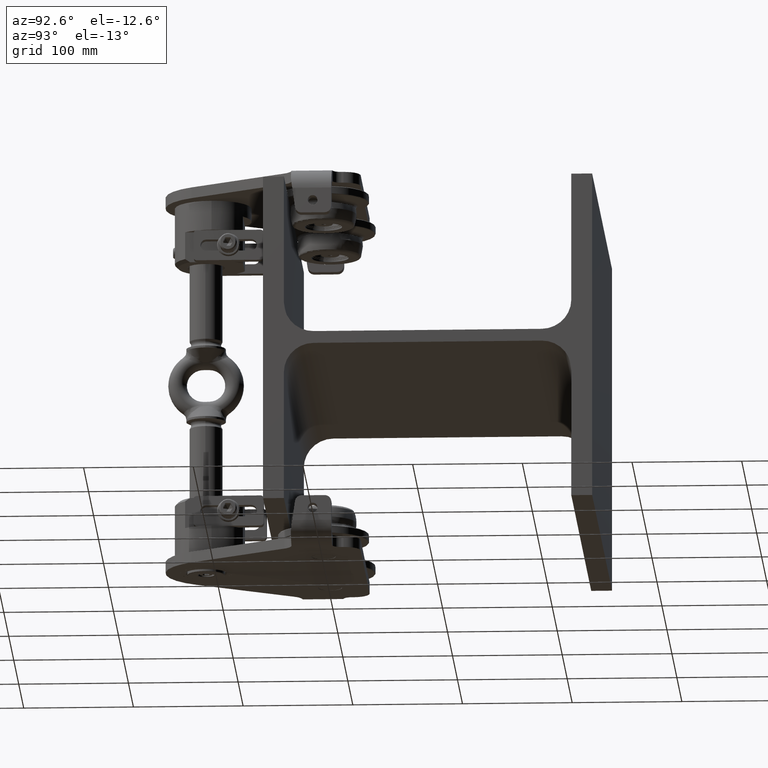
[diagram: clean part render]
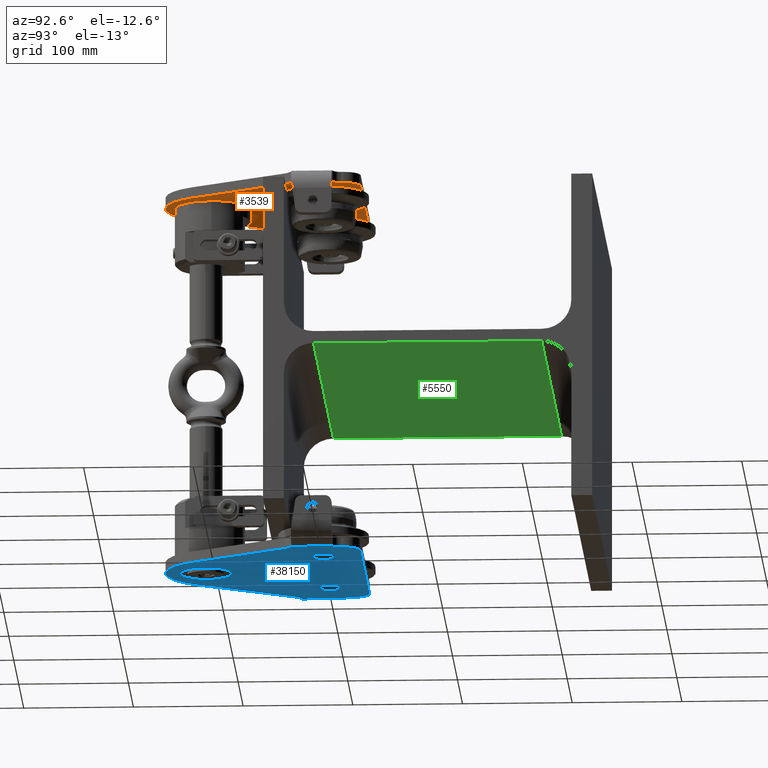
[diagram: same view with three faces highlighted in distinct colors, each labeled with its STEP entity id]
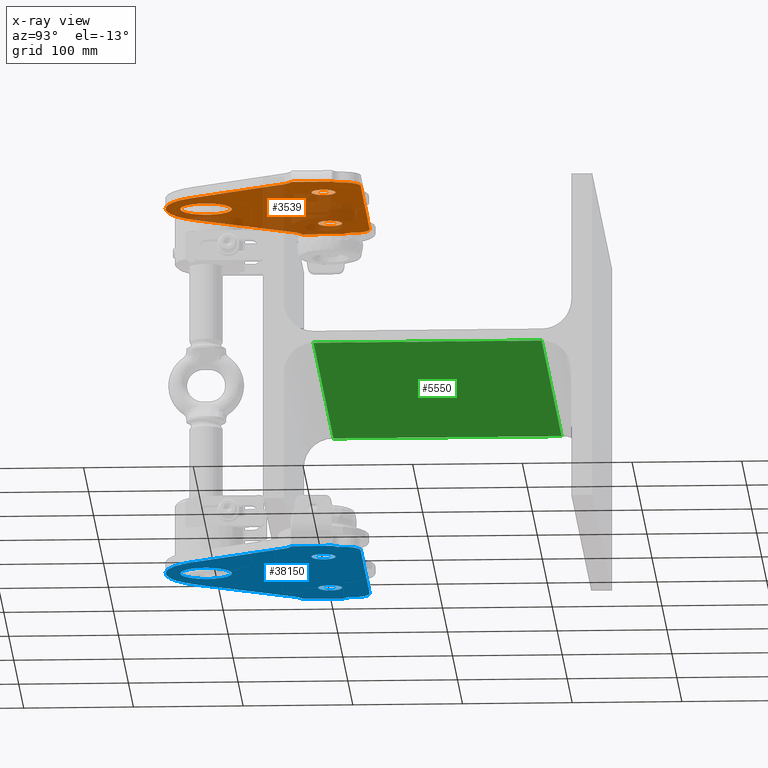
[diagram: x-ray of the same camera — body ghosted, the three highlighted faces saturated]
A machine part, auxiliary view with three faces highlighted in distinct colors.
The next image is the same camera in x-ray (body ghosted, the three faces saturated) — at least one of them is partly hidden behind the body in this view.
Their STEP definitions:

[orange] entity #3539 — the highlighted planar face has unit normal (-0, -0, -1).
#491 = CARTESIAN_POINT ( 'NONE',  ( 46.74760858534361300, -221.9769061763243200, 164.9999999999998300 ) ) ;
#654 = DIRECTION ( 'NONE',  ( -1.000000000000000000, 0.0000000000000000000, 0.0000000000000000000 ) ) ;
#659 = CARTESIAN_POINT ( 'NONE',  ( -65.00000000000004300, -100.9999999999999700, 164.9999999999998000 ) ) ;
#831 = CARTESIAN_POINT ( 'NONE',  ( -90.00000000000004300, -80.99999999999992900, 164.9999999999998300 ) ) ;
#1080 = EDGE_CURVE ( 'NONE', #38210, #17899, #20031, .T. ) ;
#1100 = CIRCLE ( 'NONE', #52102, 10.99999999999999600 ) ;
#1825 = LINE ( 'NONE', #19940, #53238 ) ;
#1920 = VERTEX_POINT ( 'NONE', #4016 ) ;
#2576 = CARTESIAN_POINT ( 'NONE',  ( -65.00000000000004300, -89.99999999999997200, 164.9999999999998000 ) ) ;
#2676 = LINE ( 'NONE', #22964, #5918 ) ;
#2912 = VECTOR ( 'NONE', #42065, 1000.000000000000000 ) ;
#3539 = ADVANCED_FACE ( 'NONE', ( #22065, #52590, #46040, #43362 ), #35369, .T. ) ;
#3640 = EDGE_CURVE ( 'NONE', #15501, #11050, #1825, .T. ) ;
#3810 = VERTEX_POINT ( 'NONE', #12500 ) ;
#4016 = CARTESIAN_POINT ( 'NONE',  ( 113.3500829062198400, -127.9999999999999400, 164.9999999999998000 ) ) ;
#4229 = EDGE_CURVE ( 'NONE', #6718, #11050, #21267, .T. ) ;
#4296 = AXIS2_PLACEMENT_3D ( 'NONE', #11129, #52187, #11304 ) ;
#4419 = CIRCLE ( 'NONE', #48801, 10.99999999999999600 ) ;
#4515 = CARTESIAN_POINT ( 'NONE',  ( 109.9999999999999700, -247.9999999999999400, 164.9999999999998300 ) ) ;
#4564 = EDGE_CURVE ( 'NONE', #16690, #29924, #26380, .T. ) ;
#5278 = VECTOR ( 'NONE', #52118, 1000.000000000000000 ) ;
#5728 = AXIS2_PLACEMENT_3D ( 'NONE', #14856, #36208, #27700 ) ;
#5910 = CARTESIAN_POINT ( 'NONE',  ( -3.899258055146804900E-014, -234.4999999999999700, 164.9999999999998300 ) ) ;
#5915 = EDGE_CURVE ( 'NONE', #33950, #52188, #30568, .T. ) ;
#5918 = VECTOR ( 'NONE', #40162, 1000.000000000000000 ) ;
#6061 = CARTESIAN_POINT ( 'NONE',  ( -105.0000000000023400, -248.0000000000000000, 164.9999999999998600 ) ) ;
#6718 = VERTEX_POINT ( 'NONE', #12927 ) ;
#6939 = CARTESIAN_POINT ( 'NONE',  ( 64.99999999999995700, -89.99999999999995700, 164.9999999999998000 ) ) ;
#7138 = ORIENTED_EDGE ( 'NONE', *, *, #25891, .T. ) ;
#7170 = DIRECTION ( 'NONE',  ( -1.000000000000000000, 0.0000000000000000000, 0.0000000000000000000 ) ) ;
#7341 = AXIS2_PLACEMENT_3D ( 'NONE', #13543, #46921, #37987 ) ;
#7467 = DIRECTION ( 'NONE',  ( 0.0000000000000000000, -1.000000000000000000, 0.0000000000000000000 ) ) ;
#7834 = ORIENTED_EDGE ( 'NONE', *, *, #1080, .F. ) ;
#7857 = ORIENTED_EDGE ( 'NONE', *, *, #3640, .F. ) ;
#7863 = AXIS2_PLACEMENT_3D ( 'NONE', #39713, #35223, #31224 ) ;
#7995 = ORIENTED_EDGE ( 'NONE', *, *, #9566, .F. ) ;
#8236 = CARTESIAN_POINT ( 'NONE',  ( -65.00000000000004300, -111.9999999999999600, 164.9999999999998000 ) ) ;
#8985 = ORIENTED_EDGE ( 'NONE', *, *, #5915, .T. ) ;
#9243 = EDGE_CURVE ( 'NONE', #9474, #32275, #4419, .T. ) ;
#9276 = EDGE_LOOP ( 'NONE', ( #7834, #36115 ) ) ;
#9474 = VERTEX_POINT ( 'NONE', #2576 ) ;
#9480 = CIRCLE ( 'NONE', #30274, 23.50000000000000000 ) ;
#9566 = EDGE_CURVE ( 'NONE', #32275, #9474, #25169, .T. ) ;
#9573 = ORIENTED_EDGE ( 'NONE', *, *, #26605, .T. ) ;
#9847 = DIRECTION ( 'NONE',  ( 0.0000000000000000000, -1.224606353822377300E-016, -1.000000000000000000 ) ) ;
#9958 = EDGE_LOOP ( 'NONE', ( #52077, #16192 ) ) ;
#10244 = ORIENTED_EDGE ( 'NONE', *, *, #35124, .T. ) ;
#10707 = CARTESIAN_POINT ( 'NONE',  ( -90.00000000000004300, -65.99999999999992900, 164.9999999999998000 ) ) ;
#11050 = VERTEX_POINT ( 'NONE', #14015 ) ;
#11129 = CARTESIAN_POINT ( 'NONE',  ( 113.3500829062198400, -142.9999999999999400, 164.9999999999998000 ) ) ;
#11280 = DIRECTION ( 'NONE',  ( 0.0000000000000000000, 1.000000000000000000, -1.224606353822377300E-016 ) ) ;
#11304 = DIRECTION ( 'NONE',  ( -1.000000000000000000, 0.0000000000000000000, 0.0000000000000000000 ) ) ;
#11531 = CARTESIAN_POINT ( 'NONE',  ( -65.00000000000004300, -100.9999999999999700, 164.9999999999998000 ) ) ;
#11542 = CIRCLE ( 'NONE', #5728, 7.999999999999992900 ) ;
#11861 = ORIENTED_EDGE ( 'NONE', *, *, #27386, .T. ) ;
#12308 = AXIS2_PLACEMENT_3D ( 'NONE', #16504, #24827, #53947 ) ;
#12500 = CARTESIAN_POINT ( 'NONE',  ( 100.6007351102170300, -135.0972074064569300, 164.9999999999998300 ) ) ;
#12816 = CARTESIAN_POINT ( 'NONE',  ( -110.0000000000000600, -90.41619848709558500, 164.9999999999998300 ) ) ;
#12927 = CARTESIAN_POINT ( 'NONE',  ( -100.6007351102171000, -135.0972074064569300, 164.9999999999998300 ) ) ;
#12947 = VECTOR ( 'NONE', #13180, 1000.000000000000100 ) ;
#12981 = LINE ( 'NONE', #27134, #33077 ) ;
#13180 = DIRECTION ( 'NONE',  ( -0.5268528395695337700, 0.8499565197335209300, -3.763871864003361200E-017 ) ) ;
#13298 = AXIS2_PLACEMENT_3D ( 'NONE', #52335, #52517, #44097 ) ;
#13543 = CARTESIAN_POINT ( 'NONE',  ( -113.3500829062199100, -142.9999999999999700, 164.9999999999998300 ) ) ;
#13615 = CARTESIAN_POINT ( 'NONE',  ( -3.611466057347176600E-014, -210.9999999999999700, 164.9999999999998300 ) ) ;
#13867 = ORIENTED_EDGE ( 'NONE', *, *, #52260, .F. ) ;
#14015 = CARTESIAN_POINT ( 'NONE',  ( -113.3500829062199200, -127.9999999999999400, 164.9999999999998000 ) ) ;
#14397 = EDGE_CURVE ( 'NONE', #33701, #33950, #24015, .T. ) ;
#14702 = DIRECTION ( 'NONE',  ( -1.000000000000000000, 1.544492516359362600E-032, 1.261215501241293700E-016 ) ) ;
#14856 = CARTESIAN_POINT ( 'NONE',  ( -113.0000000000000600, -82.99999999999992900, 164.9999999999998300 ) ) ;
#14930 = ORIENTED_EDGE ( 'NONE', *, *, #33384, .T. ) ;
#15019 = EDGE_CURVE ( 'NONE', #17899, #38210, #1100, .T. ) ;
#15447 = CARTESIAN_POINT ( 'NONE',  ( -46.74760858534368400, -221.9769061763243200, 164.9999999999998300 ) ) ;
#15501 = VERTEX_POINT ( 'NONE', #32339 ) ;
#15712 = AXIS2_PLACEMENT_3D ( 'NONE', #27732, #44052, #14702 ) ;
#16192 = ORIENTED_EDGE ( 'NONE', *, *, #40235, .T. ) ;
#16504 = CARTESIAN_POINT ( 'NONE',  ( -3.931019861682865000E-014, -192.9999999999999400, 164.9999999999998300 ) ) ;
#16690 = VERTEX_POINT ( 'NONE', #33415 ) ;
#17080 = VERTEX_POINT ( 'NONE', #15447 ) ;
#17387 = CARTESIAN_POINT ( 'NONE',  ( -3.611466057347176600E-014, -210.9999999999999700, 164.9999999999998300 ) ) ;
#17602 = EDGE_CURVE ( 'NONE', #43443, #33701, #11542, .T. ) ;
#17899 = VERTEX_POINT ( 'NONE', #6939 ) ;
#18212 = VECTOR ( 'NONE', #26991, 1000.000000000000000 ) ;
#18920 = ORIENTED_EDGE ( 'NONE', *, *, #4564, .F. ) ;
#19199 = VECTOR ( 'NONE', #51118, 1000.000000000000100 ) ;
#19913 = DIRECTION ( 'NONE',  ( 0.0000000000000000000, -1.000000000000000000, 0.0000000000000000000 ) ) ;
#19940 = CARTESIAN_POINT ( 'NONE',  ( 129.9999999999999700, -127.9999999999999400, 164.9999999999998000 ) ) ;
#20031 = CIRCLE ( 'NONE', #53851, 10.99999999999999600 ) ;
#20285 = ORIENTED_EDGE ( 'NONE', *, *, #46503, .F. ) ;
#21267 = CIRCLE ( 'NONE', #7341, 15.00000000000000000 ) ;
#21487 = ORIENTED_EDGE ( 'NONE', *, *, #14397, .T. ) ;
#21693 = CARTESIAN_POINT ( 'NONE',  ( -52.65162886094317700, -212.4521202228409900, 164.9999999999998300 ) ) ;
#22065 = FACE_OUTER_BOUND ( 'NONE', #35567, .T. ) ;
#22140 = ORIENTED_EDGE ( 'NONE', *, *, #28467, .T. ) ;
#22842 = AXIS2_PLACEMENT_3D ( 'NONE', #831, #42396, #654 ) ;
#22929 = EDGE_CURVE ( 'NONE', #28598, #38489, #9480, .T. ) ;
#22964 = CARTESIAN_POINT ( 'NONE',  ( 105.0000000000022700, -247.9999999999969600, 164.9999999999998300 ) ) ;
#23789 = VECTOR ( 'NONE', #11280, 1000.000000000000000 ) ;
#23912 = VERTEX_POINT ( 'NONE', #491 ) ;
#24015 = LINE ( 'NONE', #6061, #18212 ) ;
#24451 = CIRCLE ( 'NONE', #7863, 7.999999999999992900 ) ;
#24827 = DIRECTION ( 'NONE',  ( -1.261215501241293700E-016, -1.224606353822377300E-016, -1.000000000000000000 ) ) ;
#24877 = VERTEX_POINT ( 'NONE', #51831 ) ;
#24912 = CIRCLE ( 'NONE', #4296, 15.00000000000000000 ) ;
#25006 = CARTESIAN_POINT ( 'NONE',  ( 64.99999999999995700, -111.9999999999999400, 164.9999999999998000 ) ) ;
#25169 = CIRCLE ( 'NONE', #42824, 10.99999999999999600 ) ;
#25414 = CARTESIAN_POINT ( 'NONE',  ( -105.0000000000000300, -80.99999999999992900, 164.9999999999998300 ) ) ;
#25739 = LINE ( 'NONE', #49050, #23789 ) ;
#25891 = EDGE_CURVE ( 'NONE', #3810, #23912, #49743, .T. ) ;
#26380 = LINE ( 'NONE', #4515, #2912 ) ;
#26605 = EDGE_CURVE ( 'NONE', #24877, #29630, #2676, .T. ) ;
#26620 = CIRCLE ( 'NONE', #12308, 55.00000000000000700 ) ;
#26991 = DIRECTION ( 'NONE',  ( 1.387778780781448000E-014, 1.000000000000000000, -1.224606353822394800E-016 ) ) ;
#27045 = CARTESIAN_POINT ( 'NONE',  ( 129.9999999999999700, -127.9999999999999400, 164.9999999999998000 ) ) ;
#27134 = CARTESIAN_POINT ( 'NONE',  ( -110.0000000000000600, -65.99999999999992900, 164.9999999999998300 ) ) ;
#27386 = EDGE_CURVE ( 'NONE', #17080, #6718, #38205, .T. ) ;
#27700 = DIRECTION ( 'NONE',  ( -1.000000000000000000, 0.0000000000000000000, 0.0000000000000000000 ) ) ;
#27732 = CARTESIAN_POINT ( 'NONE',  ( -110.0000000000000600, -247.9999999999999400, 164.9999999999998600 ) ) ;
#28195 = CIRCLE ( 'NONE', #13298, 15.00000000000000000 ) ;
#28467 = EDGE_CURVE ( 'NONE', #23912, #17080, #26620, .T. ) ;
#28468 = ORIENTED_EDGE ( 'NONE', *, *, #9243, .F. ) ;
#28598 = VERTEX_POINT ( 'NONE', #32573 ) ;
#29594 = DIRECTION ( 'NONE',  ( 0.0000000000000000000, -1.224606353822377300E-016, -1.000000000000000000 ) ) ;
#29630 = VERTEX_POINT ( 'NONE', #37066 ) ;
#29924 = VERTEX_POINT ( 'NONE', #39563 ) ;
#30274 = AXIS2_PLACEMENT_3D ( 'NONE', #17387, #33306, #33680 ) ;
#30552 = DIRECTION ( 'NONE',  ( 0.0000000000000000000, -1.000000000000000000, 0.0000000000000000000 ) ) ;
#30568 = CIRCLE ( 'NONE', #22842, 15.00000000000000000 ) ;
#30612 = DIRECTION ( 'NONE',  ( 1.261215501241293700E-016, 1.224606353822377300E-016, 1.000000000000000000 ) ) ;
#31224 = DIRECTION ( 'NONE',  ( -1.000000000000000000, 0.0000000000000000000, 0.0000000000000000000 ) ) ;
#31705 = ORIENTED_EDGE ( 'NONE', *, *, #4229, .T. ) ;
#31728 = ORIENTED_EDGE ( 'NONE', *, *, #45747, .T. ) ;
#32275 = VERTEX_POINT ( 'NONE', #8236 ) ;
#32339 = CARTESIAN_POINT ( 'NONE',  ( -110.0000000000000600, -127.9999999999999400, 164.9999999999998000 ) ) ;
#32360 = DIRECTION ( 'NONE',  ( 0.0000000000000000000, -1.224606353822377300E-016, -1.000000000000000000 ) ) ;
#32573 = CARTESIAN_POINT ( 'NONE',  ( -3.611466057347176600E-014, -187.4999999999999700, 164.9999999999998300 ) ) ;
#33077 = VECTOR ( 'NONE', #48039, 1000.000000000000000 ) ;
#33306 = DIRECTION ( 'NONE',  ( 1.261215501241293700E-016, 1.224606353822377300E-016, 1.000000000000000000 ) ) ;
#33384 = EDGE_CURVE ( 'NONE', #1920, #3810, #24912, .T. ) ;
#33415 = CARTESIAN_POINT ( 'NONE',  ( 109.9999999999999700, -127.9999999999999400, 164.9999999999998000 ) ) ;
#33669 = AXIS2_PLACEMENT_3D ( 'NONE', #13615, #30612, #34612 ) ;
#33680 = DIRECTION ( 'NONE',  ( -1.000000000000000000, 0.0000000000000000000, 0.0000000000000000000 ) ) ;
#33701 = VERTEX_POINT ( 'NONE', #37407 ) ;
#33950 = VERTEX_POINT ( 'NONE', #25414 ) ;
#34612 = DIRECTION ( 'NONE',  ( -1.000000000000000000, 0.0000000000000000000, 0.0000000000000000000 ) ) ;
#35124 = EDGE_CURVE ( 'NONE', #29630, #29924, #24451, .T. ) ;
#35223 = DIRECTION ( 'NONE',  ( 1.261215501241293700E-016, 1.224606353822377300E-016, 1.000000000000000000 ) ) ;
#35369 = PLANE ( 'NONE',  #15712 ) ;
#35567 = EDGE_LOOP ( 'NONE', ( #18920, #13867, #14930, #7138, #22140, #11861, #31705, #7857, #41483, #47129, #21487, #8985, #20285, #31728, #9573, #10244 ) ) ;
#36115 = ORIENTED_EDGE ( 'NONE', *, *, #15019, .F. ) ;
#36208 = DIRECTION ( 'NONE',  ( 1.261215501241293700E-016, 1.224606353822377300E-016, 1.000000000000000000 ) ) ;
#37066 = CARTESIAN_POINT ( 'NONE',  ( 104.9999999999999700, -82.99999999999992900, 164.9999999999998000 ) ) ;
#37407 = CARTESIAN_POINT ( 'NONE',  ( -105.0000000000000700, -82.99999999999992900, 164.9999999999998300 ) ) ;
#37754 = LINE ( 'NONE', #27045, #5278 ) ;
#37987 = DIRECTION ( 'NONE',  ( -1.000000000000000000, 1.850371707708594400E-015, 0.0000000000000000000 ) ) ;
#38205 = LINE ( 'NONE', #21693, #12947 ) ;
#38210 = VERTEX_POINT ( 'NONE', #25006 ) ;
#38489 = VERTEX_POINT ( 'NONE', #5910 ) ;
#38865 = CARTESIAN_POINT ( 'NONE',  ( 89.99999999999995700, -65.99999999999992900, 164.9999999999998000 ) ) ;
#39563 = CARTESIAN_POINT ( 'NONE',  ( 109.9999999999999700, -90.41619848709557100, 164.9999999999998000 ) ) ;
#39713 = CARTESIAN_POINT ( 'NONE',  ( 112.9999999999999700, -82.99999999999992900, 164.9999999999998000 ) ) ;
#40162 = DIRECTION ( 'NONE',  ( 1.387778780781448000E-014, -1.000000000000000000, 1.224606353822359800E-016 ) ) ;
#40235 = EDGE_CURVE ( 'NONE', #38489, #28598, #46427, .T. ) ;
#41483 = ORIENTED_EDGE ( 'NONE', *, *, #44173, .T. ) ;
#42065 = DIRECTION ( 'NONE',  ( 0.0000000000000000000, 1.000000000000000000, -1.224606353822377300E-016 ) ) ;
#42396 = DIRECTION ( 'NONE',  ( -1.261215501241293700E-016, -1.224606353822377300E-016, -1.000000000000000000 ) ) ;
#42426 = VERTEX_POINT ( 'NONE', #38865 ) ;
#42824 = AXIS2_PLACEMENT_3D ( 'NONE', #11531, #32360, #7467 ) ;
#42841 = CARTESIAN_POINT ( 'NONE',  ( -8.414632342802702800, -310.9685615279347500, 164.9999999999998600 ) ) ;
#43362 = FACE_BOUND ( 'NONE', #9958, .T. ) ;
#43443 = VERTEX_POINT ( 'NONE', #12816 ) ;
#44052 = DIRECTION ( 'NONE',  ( -1.261215501241293700E-016, -1.224606353822377300E-016, -1.000000000000000000 ) ) ;
#44097 = DIRECTION ( 'NONE',  ( -1.000000000000000000, 0.0000000000000000000, 0.0000000000000000000 ) ) ;
#44173 = EDGE_CURVE ( 'NONE', #15501, #43443, #25739, .T. ) ;
#45537 = DIRECTION ( 'NONE',  ( 0.0000000000000000000, -1.000000000000000000, 0.0000000000000000000 ) ) ;
#45747 = EDGE_CURVE ( 'NONE', #42426, #24877, #28195, .T. ) ;
#46040 = FACE_BOUND ( 'NONE', #9276, .T. ) ;
#46427 = CIRCLE ( 'NONE', #33669, 23.50000000000000000 ) ;
#46503 = EDGE_CURVE ( 'NONE', #42426, #52188, #12981, .T. ) ;
#46921 = DIRECTION ( 'NONE',  ( 1.261215501241293700E-016, 1.224606353822377300E-016, 1.000000000000000000 ) ) ;
#47129 = ORIENTED_EDGE ( 'NONE', *, *, #17602, .T. ) ;
#47275 = CARTESIAN_POINT ( 'NONE',  ( 64.99999999999995700, -100.9999999999999600, 164.9999999999998000 ) ) ;
#48039 = DIRECTION ( 'NONE',  ( -1.000000000000000000, 1.544492516359362600E-032, 1.261215501241293700E-016 ) ) ;
#48801 = AXIS2_PLACEMENT_3D ( 'NONE', #659, #29594, #45537 ) ;
#49050 = CARTESIAN_POINT ( 'NONE',  ( -110.0000000000000600, -247.9999999999999400, 164.9999999999998300 ) ) ;
#49145 = DIRECTION ( 'NONE',  ( 0.0000000000000000000, -1.224606353822377300E-016, -1.000000000000000000 ) ) ;
#49342 = CARTESIAN_POINT ( 'NONE',  ( 64.99999999999995700, -100.9999999999999600, 164.9999999999998000 ) ) ;
#49743 = LINE ( 'NONE', #42841, #19199 ) ;
#51118 = DIRECTION ( 'NONE',  ( -0.5268528395695339900, -0.8499565197335207100, 1.705337122676512800E-016 ) ) ;
#51831 = CARTESIAN_POINT ( 'NONE',  ( 104.9999999999999400, -80.99999999999992900, 164.9999999999998000 ) ) ;
#52077 = ORIENTED_EDGE ( 'NONE', *, *, #22929, .T. ) ;
#52102 = AXIS2_PLACEMENT_3D ( 'NONE', #49342, #49145, #19913 ) ;
#52118 = DIRECTION ( 'NONE',  ( -1.000000000000000000, 0.0000000000000000000, 0.0000000000000000000 ) ) ;
#52187 = DIRECTION ( 'NONE',  ( 1.261215501241293700E-016, 1.224606353822377300E-016, 1.000000000000000000 ) ) ;
#52188 = VERTEX_POINT ( 'NONE', #10707 ) ;
#52260 = EDGE_CURVE ( 'NONE', #1920, #16690, #37754, .T. ) ;
#52335 = CARTESIAN_POINT ( 'NONE',  ( 89.99999999999995700, -80.99999999999992900, 164.9999999999998000 ) ) ;
#52517 = DIRECTION ( 'NONE',  ( -1.261215501241293700E-016, -1.224606353822377300E-016, -1.000000000000000000 ) ) ;
#52590 = FACE_BOUND ( 'NONE', #53532, .T. ) ;
#53238 = VECTOR ( 'NONE', #7170, 1000.000000000000000 ) ;
#53532 = EDGE_LOOP ( 'NONE', ( #7995, #28468 ) ) ;
#53851 = AXIS2_PLACEMENT_3D ( 'NONE', #47275, #9847, #30552 ) ;
#53947 = DIRECTION ( 'NONE',  ( -1.000000000000000000, 0.0000000000000000000, 0.0000000000000000000 ) ) ;

[blue] entity #38150 — the highlighted planar face has unit normal (0, 0, -1).
#501 = CARTESIAN_POINT ( 'NONE',  ( 46.74760858534363500, -221.9769061763242900, -175.0000000000000000 ) ) ;
#723 = CARTESIAN_POINT ( 'NONE',  ( -113.0000000000000300, -82.99999999999991500, -175.0000000000000000 ) ) ;
#801 = DIRECTION ( 'NONE',  ( 0.0000000000000000000, 1.000000000000000000, 0.0000000000000000000 ) ) ;
#1168 = DIRECTION ( 'NONE',  ( -1.000000000000000000, 0.0000000000000000000, 0.0000000000000000000 ) ) ;
#1268 = VERTEX_POINT ( 'NONE', #40831 ) ;
#1388 = EDGE_CURVE ( 'NONE', #1544, #52326, #39340, .T. ) ;
#1544 = VERTEX_POINT ( 'NONE', #33942 ) ;
#2561 = CARTESIAN_POINT ( 'NONE',  ( 64.99999999999998600, -100.9999999999999600, -175.0000000000000000 ) ) ;
#2651 = ORIENTED_EDGE ( 'NONE', *, *, #3575, .T. ) ;
#2710 = CARTESIAN_POINT ( 'NONE',  ( 64.99999999999998600, -89.99999999999995700, -175.0000000000000000 ) ) ;
#3103 = EDGE_LOOP ( 'NONE', ( #11007, #27205, #20675, #53498, #48000, #5937, #39917, #3842, #23102, #50873, #46288, #35262, #2651, #42520 ) ) ;
#3388 = LINE ( 'NONE', #7122, #47648 ) ;
#3500 = EDGE_CURVE ( 'NONE', #47665, #1544, #16237, .T. ) ;
#3575 = EDGE_CURVE ( 'NONE', #52326, #1268, #32368, .T. ) ;
#3639 = EDGE_CURVE ( 'NONE', #15436, #32951, #10287, .T. ) ;
#3842 = ORIENTED_EDGE ( 'NONE', *, *, #12870, .T. ) ;
#4951 = EDGE_CURVE ( 'NONE', #42991, #17513, #33372, .T. ) ;
#5026 = ORIENTED_EDGE ( 'NONE', *, *, #42411, .F. ) ;
#5628 = CARTESIAN_POINT ( 'NONE',  ( -1.885005003163367300E-014, -210.9999999999999400, -175.0000000000000000 ) ) ;
#5937 = ORIENTED_EDGE ( 'NONE', *, *, #25212, .T. ) ;
#6066 = DIRECTION ( 'NONE',  ( 3.154042683594194400E-017, 1.224606353822377300E-016, -1.000000000000000000 ) ) ;
#6856 = VECTOR ( 'NONE', #50887, 1000.000000000000100 ) ;
#7122 = CARTESIAN_POINT ( 'NONE',  ( -105.0000000000000000, -80.99999999999991500, -175.0000000000000000 ) ) ;
#7332 = VECTOR ( 'NONE', #48040, 1000.000000000000000 ) ;
#7753 = ORIENTED_EDGE ( 'NONE', *, *, #42125, .F. ) ;
#7893 = DIRECTION ( 'NONE',  ( 0.0000000000000000000, -1.000000000000000000, 0.0000000000000000000 ) ) ;
#7914 = EDGE_CURVE ( 'NONE', #15507, #42296, #48911, .T. ) ;
#8878 = DIRECTION ( 'NONE',  ( -0.0000000000000000000, -1.224606353822377300E-016, 1.000000000000000000 ) ) ;
#9303 = CARTESIAN_POINT ( 'NONE',  ( -1.885005003163367300E-014, -187.4999999999999400, -175.0000000000000000 ) ) ;
#9844 = DIRECTION ( 'NONE',  ( 0.0000000000000000000, 1.000000000000000000, 0.0000000000000000000 ) ) ;
#10287 = CIRCLE ( 'NONE', #21264, 15.00000000000000000 ) ;
#10313 = CIRCLE ( 'NONE', #47158, 15.00000000000000000 ) ;
#10487 = DIRECTION ( 'NONE',  ( -0.5268528395695338800, 0.8499565197335208200, 1.040862154538424200E-016 ) ) ;
#10807 = VERTEX_POINT ( 'NONE', #53652 ) ;
#10985 = LINE ( 'NONE', #32206, #51305 ) ;
#11007 = ORIENTED_EDGE ( 'NONE', *, *, #40544, .T. ) ;
#11819 = DIRECTION ( 'NONE',  ( 0.0000000000000000000, -1.000000000000000000, 0.0000000000000000000 ) ) ;
#11908 = AXIS2_PLACEMENT_3D ( 'NONE', #38211, #34756, #46603 ) ;
#12192 = CARTESIAN_POINT ( 'NONE',  ( -1.565451198827678500E-014, -192.9999999999999100, -175.0000000000000000 ) ) ;
#12565 = DIRECTION ( 'NONE',  ( 0.0000000000000000000, 1.000000000000000000, 0.0000000000000000000 ) ) ;
#12870 = EDGE_CURVE ( 'NONE', #42991, #28436, #20175, .T. ) ;
#13061 = DIRECTION ( 'NONE',  ( 3.154042683594194400E-017, 1.224606353822377300E-016, -1.000000000000000000 ) ) ;
#13235 = DIRECTION ( 'NONE',  ( -1.000000000000000000, 0.0000000000000000000, 0.0000000000000000000 ) ) ;
#14478 = EDGE_CURVE ( 'NONE', #21415, #32146, #10985, .T. ) ;
#15212 = CARTESIAN_POINT ( 'NONE',  ( -110.0000000000000300, -247.9999999999999100, -175.0000000000000300 ) ) ;
#15436 = VERTEX_POINT ( 'NONE', #48019 ) ;
#15507 = VERTEX_POINT ( 'NONE', #2710 ) ;
#15954 = DIRECTION ( 'NONE',  ( 3.154042683594194400E-017, 1.224606353822377300E-016, -1.000000000000000000 ) ) ;
#16042 = CIRCLE ( 'NONE', #22443, 10.99999999999999600 ) ;
#16237 = LINE ( 'NONE', #31192, #36960 ) ;
#16525 = DIRECTION ( 'NONE',  ( 0.0000000000000000000, -1.000000000000000000, 0.0000000000000000000 ) ) ;
#17167 = EDGE_CURVE ( 'NONE', #10807, #21415, #10313, .T. ) ;
#17485 = ORIENTED_EDGE ( 'NONE', *, *, #7914, .F. ) ;
#17513 = VERTEX_POINT ( 'NONE', #35686 ) ;
#17738 = EDGE_CURVE ( 'NONE', #33096, #30160, #53107, .T. ) ;
#18000 = LINE ( 'NONE', #501, #6856 ) ;
#18049 = DIRECTION ( 'NONE',  ( 0.0000000000000000000, 1.000000000000000000, 0.0000000000000000000 ) ) ;
#18111 = CIRCLE ( 'NONE', #29881, 7.999999999999992900 ) ;
#18868 = DIRECTION ( 'NONE',  ( -1.000000000000000000, 0.0000000000000000000, 0.0000000000000000000 ) ) ;
#18905 = FACE_OUTER_BOUND ( 'NONE', #3103, .T. ) ;
#19498 = AXIS2_PLACEMENT_3D ( 'NONE', #21750, #13061, #13235 ) ;
#19591 = CARTESIAN_POINT ( 'NONE',  ( -110.0000000000000300, -247.9999999999999100, -175.0000000000000300 ) ) ;
#19759 = PLANE ( 'NONE',  #26201 ) ;
#19769 = DIRECTION ( 'NONE',  ( 0.0000000000000000000, 1.224606353822377300E-016, -1.000000000000000000 ) ) ;
#20175 = CIRCLE ( 'NONE', #11908, 15.00000000000001400 ) ;
#20352 = CARTESIAN_POINT ( 'NONE',  ( 113.0000000000000000, -82.99999999999991500, -175.0000000000000000 ) ) ;
#20614 = VERTEX_POINT ( 'NONE', #24128 ) ;
#20675 = ORIENTED_EDGE ( 'NONE', *, *, #35500, .F. ) ;
#20726 = CIRCLE ( 'NONE', #33478, 55.00000000000002100 ) ;
#20836 = CARTESIAN_POINT ( 'NONE',  ( -90.00000000000001400, -65.99999999999991500, -175.0000000000000000 ) ) ;
#21264 = AXIS2_PLACEMENT_3D ( 'NONE', #40762, #19769, #7893 ) ;
#21415 = VERTEX_POINT ( 'NONE', #50955 ) ;
#21750 = CARTESIAN_POINT ( 'NONE',  ( -65.00000000000001400, -100.9999999999999400, -175.0000000000000000 ) ) ;
#22443 = AXIS2_PLACEMENT_3D ( 'NONE', #51002, #34603, #1168 ) ;
#23102 = ORIENTED_EDGE ( 'NONE', *, *, #27938, .T. ) ;
#23316 = CARTESIAN_POINT ( 'NONE',  ( 110.0000000000000000, -247.9999999999999100, -175.0000000000000000 ) ) ;
#24087 = CARTESIAN_POINT ( 'NONE',  ( 105.0000000000000100, -82.99999999999991500, -175.0000000000000000 ) ) ;
#24128 = CARTESIAN_POINT ( 'NONE',  ( -65.00000000000001400, -89.99999999999994300, -175.0000000000000000 ) ) ;
#24544 = EDGE_CURVE ( 'NONE', #48423, #47665, #20726, .T. ) ;
#24628 = EDGE_LOOP ( 'NONE', ( #40904, #27985 ) ) ;
#25212 = EDGE_CURVE ( 'NONE', #32146, #17513, #18111, .T. ) ;
#25292 = AXIS2_PLACEMENT_3D ( 'NONE', #42893, #42541, #801 ) ;
#26201 = AXIS2_PLACEMENT_3D ( 'NONE', #15212, #15954, #44210 ) ;
#27205 = ORIENTED_EDGE ( 'NONE', *, *, #3639, .T. ) ;
#27938 = EDGE_CURVE ( 'NONE', #28436, #48423, #18000, .T. ) ;
#27985 = ORIENTED_EDGE ( 'NONE', *, *, #41178, .F. ) ;
#28436 = VERTEX_POINT ( 'NONE', #49006 ) ;
#29083 = DIRECTION ( 'NONE',  ( 0.0000000000000000000, 1.000000000000000000, 0.0000000000000000000 ) ) ;
#29881 = AXIS2_PLACEMENT_3D ( 'NONE', #20352, #54009, #29083 ) ;
#29945 = FACE_BOUND ( 'NONE', #24628, .T. ) ;
#30160 = VERTEX_POINT ( 'NONE', #52398 ) ;
#30456 = AXIS2_PLACEMENT_3D ( 'NONE', #5628, #43359, #9844 ) ;
#30539 = DIRECTION ( 'NONE',  ( -0.0000000000000000000, -1.224606353822377300E-016, 1.000000000000000000 ) ) ;
#31192 = CARTESIAN_POINT ( 'NONE',  ( -100.6007351102170900, -135.0972074064569300, -175.0000000000000000 ) ) ;
#31340 = CARTESIAN_POINT ( 'NONE',  ( -105.0000000000000300, -82.99999999999991500, -175.0000000000000000 ) ) ;
#31640 = DIRECTION ( 'NONE',  ( -1.000000000000000000, 0.0000000000000000000, 0.0000000000000000000 ) ) ;
#31860 = DIRECTION ( 'NONE',  ( 1.387778780781448000E-014, 1.000000000000000000, 1.224606353822377300E-016 ) ) ;
#32146 = VERTEX_POINT ( 'NONE', #24087 ) ;
#32206 = CARTESIAN_POINT ( 'NONE',  ( 105.0000000000000000, -82.99999999999991500, -175.0000000000000000 ) ) ;
#32368 = LINE ( 'NONE', #19591, #48674 ) ;
#32818 = DIRECTION ( 'NONE',  ( 0.0000000000000000000, 1.224606353822377300E-016, -1.000000000000000000 ) ) ;
#32951 = VERTEX_POINT ( 'NONE', #20836 ) ;
#33096 = VERTEX_POINT ( 'NONE', #9303 ) ;
#33372 = LINE ( 'NONE', #23316, #7332 ) ;
#33478 = AXIS2_PLACEMENT_3D ( 'NONE', #12192, #45004, #11819 ) ;
#33942 = CARTESIAN_POINT ( 'NONE',  ( -100.6007351102170900, -135.0972074064569300, -175.0000000000000000 ) ) ;
#34501 = EDGE_LOOP ( 'NONE', ( #44565, #5026 ) ) ;
#34603 = DIRECTION ( 'NONE',  ( 3.154042683594194400E-017, 1.224606353822377300E-016, -1.000000000000000000 ) ) ;
#34756 = DIRECTION ( 'NONE',  ( -0.0000000000000000000, -1.224606353822377300E-016, 1.000000000000000000 ) ) ;
#35152 = CARTESIAN_POINT ( 'NONE',  ( -46.74760858534366300, -221.9769061763242900, -175.0000000000000000 ) ) ;
#35262 = ORIENTED_EDGE ( 'NONE', *, *, #1388, .T. ) ;
#35500 = EDGE_CURVE ( 'NONE', #10807, #32951, #41557, .T. ) ;
#35686 = CARTESIAN_POINT ( 'NONE',  ( 110.0000000000000000, -90.41619848709555600, -175.0000000000000000 ) ) ;
#35872 = CARTESIAN_POINT ( 'NONE',  ( -110.0000000000000300, -65.99999999999991500, -175.0000000000000000 ) ) ;
#36191 = CARTESIAN_POINT ( 'NONE',  ( -65.00000000000001400, -111.9999999999999300, -175.0000000000000000 ) ) ;
#36960 = VECTOR ( 'NONE', #10487, 1000.000000000000200 ) ;
#37686 = VECTOR ( 'NONE', #47925, 1000.000000000000000 ) ;
#38150 = ADVANCED_FACE ( 'NONE', ( #50113, #38995, #29945, #18905 ), #19759, .T. ) ;
#38211 = CARTESIAN_POINT ( 'NONE',  ( 113.3500829062198500, -142.9999999999999400, -175.0000000000000000 ) ) ;
#38995 = FACE_BOUND ( 'NONE', #40681, .T. ) ;
#39340 = CIRCLE ( 'NONE', #46151, 14.99999999999998600 ) ;
#39917 = ORIENTED_EDGE ( 'NONE', *, *, #4951, .F. ) ;
#40070 = CARTESIAN_POINT ( 'NONE',  ( -110.0000000000000300, -128.3788870286337000, -175.0000000000000000 ) ) ;
#40544 = EDGE_CURVE ( 'NONE', #52806, #15436, #3388, .T. ) ;
#40549 = DIRECTION ( 'NONE',  ( 1.387778780781448000E-014, -1.000000000000000000, -1.224606353822377300E-016 ) ) ;
#40681 = EDGE_LOOP ( 'NONE', ( #7753, #17485 ) ) ;
#40762 = CARTESIAN_POINT ( 'NONE',  ( -90.00000000000001400, -80.99999999999991500, -175.0000000000000000 ) ) ;
#40831 = CARTESIAN_POINT ( 'NONE',  ( -110.0000000000000300, -90.41619848709555600, -175.0000000000000000 ) ) ;
#40904 = ORIENTED_EDGE ( 'NONE', *, *, #44834, .F. ) ;
#41178 = EDGE_CURVE ( 'NONE', #20614, #53946, #48748, .T. ) ;
#41557 = LINE ( 'NONE', #35872, #37686 ) ;
#42125 = EDGE_CURVE ( 'NONE', #42296, #15507, #16042, .T. ) ;
#42296 = VERTEX_POINT ( 'NONE', #52056 ) ;
#42411 = EDGE_CURVE ( 'NONE', #30160, #33096, #53063, .T. ) ;
#42520 = ORIENTED_EDGE ( 'NONE', *, *, #48898, .T. ) ;
#42541 = DIRECTION ( 'NONE',  ( 0.0000000000000000000, 1.224606353822377300E-016, -1.000000000000000000 ) ) ;
#42893 = CARTESIAN_POINT ( 'NONE',  ( -1.885005003163367300E-014, -210.9999999999999400, -175.0000000000000000 ) ) ;
#42991 = VERTEX_POINT ( 'NONE', #48843 ) ;
#43296 = CARTESIAN_POINT ( 'NONE',  ( 46.74760858534362700, -221.9769061763242900, -175.0000000000000000 ) ) ;
#43359 = DIRECTION ( 'NONE',  ( 0.0000000000000000000, 1.224606353822377300E-016, -1.000000000000000000 ) ) ;
#44210 = DIRECTION ( 'NONE',  ( -1.000000000000000000, 3.862460710556432000E-033, -3.154042683594194400E-017 ) ) ;
#44565 = ORIENTED_EDGE ( 'NONE', *, *, #17738, .F. ) ;
#44834 = EDGE_CURVE ( 'NONE', #53946, #20614, #48298, .T. ) ;
#45004 = DIRECTION ( 'NONE',  ( 0.0000000000000000000, 1.224606353822377300E-016, -1.000000000000000000 ) ) ;
#45907 = CARTESIAN_POINT ( 'NONE',  ( 89.99999999999998600, -80.99999999999991500, -175.0000000000000000 ) ) ;
#46132 = CARTESIAN_POINT ( 'NONE',  ( -113.3500829062199000, -142.9999999999999100, -175.0000000000000000 ) ) ;
#46151 = AXIS2_PLACEMENT_3D ( 'NONE', #46132, #8878, #12565 ) ;
#46288 = ORIENTED_EDGE ( 'NONE', *, *, #3500, .T. ) ;
#46603 = DIRECTION ( 'NONE',  ( 0.0000000000000000000, 1.000000000000000000, 0.0000000000000000000 ) ) ;
#47158 = AXIS2_PLACEMENT_3D ( 'NONE', #45907, #32818, #16525 ) ;
#47360 = CARTESIAN_POINT ( 'NONE',  ( -65.00000000000001400, -100.9999999999999400, -175.0000000000000000 ) ) ;
#47648 = VECTOR ( 'NONE', #31860, 1000.000000000000000 ) ;
#47665 = VERTEX_POINT ( 'NONE', #35152 ) ;
#47925 = DIRECTION ( 'NONE',  ( -1.000000000000000000, 3.862460710556432000E-033, -3.154042683594194400E-017 ) ) ;
#48000 = ORIENTED_EDGE ( 'NONE', *, *, #14478, .T. ) ;
#48019 = CARTESIAN_POINT ( 'NONE',  ( -105.0000000000000000, -80.99999999999991500, -175.0000000000000000 ) ) ;
#48040 = DIRECTION ( 'NONE',  ( 0.0000000000000000000, 1.000000000000000000, 1.224606353822377300E-016 ) ) ;
#48298 = CIRCLE ( 'NONE', #19498, 10.99999999999999600 ) ;
#48423 = VERTEX_POINT ( 'NONE', #43296 ) ;
#48674 = VECTOR ( 'NONE', #53570, 1000.000000000000000 ) ;
#48721 = CIRCLE ( 'NONE', #50461, 7.999999999999992900 ) ;
#48748 = CIRCLE ( 'NONE', #51958, 10.99999999999999600 ) ;
#48843 = CARTESIAN_POINT ( 'NONE',  ( 110.0000000000000000, -128.3788870286337000, -175.0000000000000000 ) ) ;
#48898 = EDGE_CURVE ( 'NONE', #1268, #52806, #48721, .T. ) ;
#48911 = CIRCLE ( 'NONE', #50156, 10.99999999999999600 ) ;
#49006 = CARTESIAN_POINT ( 'NONE',  ( 100.6007351102170400, -135.0972074064569300, -175.0000000000000000 ) ) ;
#50113 = FACE_BOUND ( 'NONE', #34501, .T. ) ;
#50156 = AXIS2_PLACEMENT_3D ( 'NONE', #2561, #51858, #31640 ) ;
#50461 = AXIS2_PLACEMENT_3D ( 'NONE', #723, #30539, #18049 ) ;
#50873 = ORIENTED_EDGE ( 'NONE', *, *, #24544, .T. ) ;
#50887 = DIRECTION ( 'NONE',  ( -0.5268528395695337700, -0.8499565197335209300, -1.040862154538424500E-016 ) ) ;
#50955 = CARTESIAN_POINT ( 'NONE',  ( 104.9999999999999700, -80.99999999999991500, -175.0000000000000000 ) ) ;
#51002 = CARTESIAN_POINT ( 'NONE',  ( 64.99999999999998600, -100.9999999999999600, -175.0000000000000000 ) ) ;
#51305 = VECTOR ( 'NONE', #40549, 1000.000000000000000 ) ;
#51858 = DIRECTION ( 'NONE',  ( 3.154042683594194400E-017, 1.224606353822377300E-016, -1.000000000000000000 ) ) ;
#51958 = AXIS2_PLACEMENT_3D ( 'NONE', #47360, #6066, #18868 ) ;
#52056 = CARTESIAN_POINT ( 'NONE',  ( 64.99999999999998600, -111.9999999999999400, -175.0000000000000000 ) ) ;
#52326 = VERTEX_POINT ( 'NONE', #40070 ) ;
#52398 = CARTESIAN_POINT ( 'NONE',  ( -1.597213005363739100E-014, -234.4999999999999400, -175.0000000000000000 ) ) ;
#52806 = VERTEX_POINT ( 'NONE', #31340 ) ;
#53063 = CIRCLE ( 'NONE', #30456, 23.49999999999999300 ) ;
#53107 = CIRCLE ( 'NONE', #25292, 23.49999999999999300 ) ;
#53498 = ORIENTED_EDGE ( 'NONE', *, *, #17167, .T. ) ;
#53570 = DIRECTION ( 'NONE',  ( 0.0000000000000000000, 1.000000000000000000, 1.224606353822377300E-016 ) ) ;
#53652 = CARTESIAN_POINT ( 'NONE',  ( 89.99999999999998600, -65.99999999999991500, -175.0000000000000000 ) ) ;
#53946 = VERTEX_POINT ( 'NONE', #36191 ) ;
#54009 = DIRECTION ( 'NONE',  ( -0.0000000000000000000, -1.224606353822377300E-016, 1.000000000000000000 ) ) ;

[green] entity #5550 — the highlighted planar face has unit normal (0, 0, -1).
#449 = EDGE_CURVE ( 'NONE', #4390, #43680, #1798, .T. ) ;
#1798 = LINE ( 'NONE', #21550, #31051 ) ;
#2777 = CARTESIAN_POINT ( 'NONE',  ( -200.0000000000000000, -103.9999999999999300, -5.499999999999981300 ) ) ;
#3231 = DIRECTION ( 'NONE',  ( 0.0000000000000000000, 1.000000000000000000, 0.0000000000000000000 ) ) ;
#3429 = EDGE_CURVE ( 'NONE', #27041, #31489, #13000, .T. ) ;
#4390 = VERTEX_POINT ( 'NONE', #41188 ) ;
#5550 = ADVANCED_FACE ( 'NONE', ( #20223 ), #32102, .T. ) ;
#5643 = EDGE_CURVE ( 'NONE', #31489, #43680, #23785, .T. ) ;
#6964 = DIRECTION ( 'NONE',  ( 0.0000000000000000000, 1.000000000000000000, 0.0000000000000000000 ) ) ;
#8799 = DIRECTION ( 'NONE',  ( 1.000000000000000000, 0.0000000000000000000, 0.0000000000000000000 ) ) ;
#10074 = CARTESIAN_POINT ( 'NONE',  ( 200.0000000000000000, 103.9999999999998700, -5.499999999999976900 ) ) ;
#13000 = LINE ( 'NONE', #31897, #26621 ) ;
#13434 = EDGE_CURVE ( 'NONE', #27041, #4390, #48915, .T. ) ;
#18425 = EDGE_LOOP ( 'NONE', ( #18691, #31975, #43291, #34605 ) ) ;
#18653 = AXIS2_PLACEMENT_3D ( 'NONE', #36459, #27953, #19807 ) ;
#18691 = ORIENTED_EDGE ( 'NONE', *, *, #5643, .F. ) ;
#19807 = DIRECTION ( 'NONE',  ( -1.000000000000000000, 0.0000000000000000000, 0.0000000000000000000 ) ) ;
#20223 = FACE_OUTER_BOUND ( 'NONE', #18425, .T. ) ;
#21550 = CARTESIAN_POINT ( 'NONE',  ( -200.0000000000000000, 103.9999999999998700, -5.499999999999976900 ) ) ;
#23785 = LINE ( 'NONE', #24331, #50449 ) ;
#24331 = CARTESIAN_POINT ( 'NONE',  ( 200.0000000000000000, -103.9999999999999300, -5.499999999999981300 ) ) ;
#26621 = VECTOR ( 'NONE', #47751, 1000.000000000000000 ) ;
#27041 = VERTEX_POINT ( 'NONE', #47069 ) ;
#27953 = DIRECTION ( 'NONE',  ( 0.0000000000000000000, 0.0000000000000000000, -1.000000000000000000 ) ) ;
#31051 = VECTOR ( 'NONE', #8799, 1000.000000000000000 ) ;
#31489 = VERTEX_POINT ( 'NONE', #32702 ) ;
#31897 = CARTESIAN_POINT ( 'NONE',  ( -200.0000000000000000, -103.9999999999999300, -5.499999999999981300 ) ) ;
#31975 = ORIENTED_EDGE ( 'NONE', *, *, #3429, .F. ) ;
#32102 = PLANE ( 'NONE',  #18653 ) ;
#32702 = CARTESIAN_POINT ( 'NONE',  ( 200.0000000000000000, -103.9999999999999300, -5.499999999999981300 ) ) ;
#34605 = ORIENTED_EDGE ( 'NONE', *, *, #449, .T. ) ;
#36459 = CARTESIAN_POINT ( 'NONE',  ( -200.0000000000000000, -103.9999999999999300, -5.499999999999981300 ) ) ;
#41188 = CARTESIAN_POINT ( 'NONE',  ( -200.0000000000000000, 103.9999999999998700, -5.499999999999976900 ) ) ;
#43291 = ORIENTED_EDGE ( 'NONE', *, *, #13434, .T. ) ;
#43680 = VERTEX_POINT ( 'NONE', #10074 ) ;
#47069 = CARTESIAN_POINT ( 'NONE',  ( -200.0000000000000000, -103.9999999999999300, -5.499999999999981300 ) ) ;
#47618 = VECTOR ( 'NONE', #6964, 1000.000000000000000 ) ;
#47751 = DIRECTION ( 'NONE',  ( 1.000000000000000000, 0.0000000000000000000, 0.0000000000000000000 ) ) ;
#48915 = LINE ( 'NONE', #2777, #47618 ) ;
#50449 = VECTOR ( 'NONE', #3231, 1000.000000000000000 ) ;